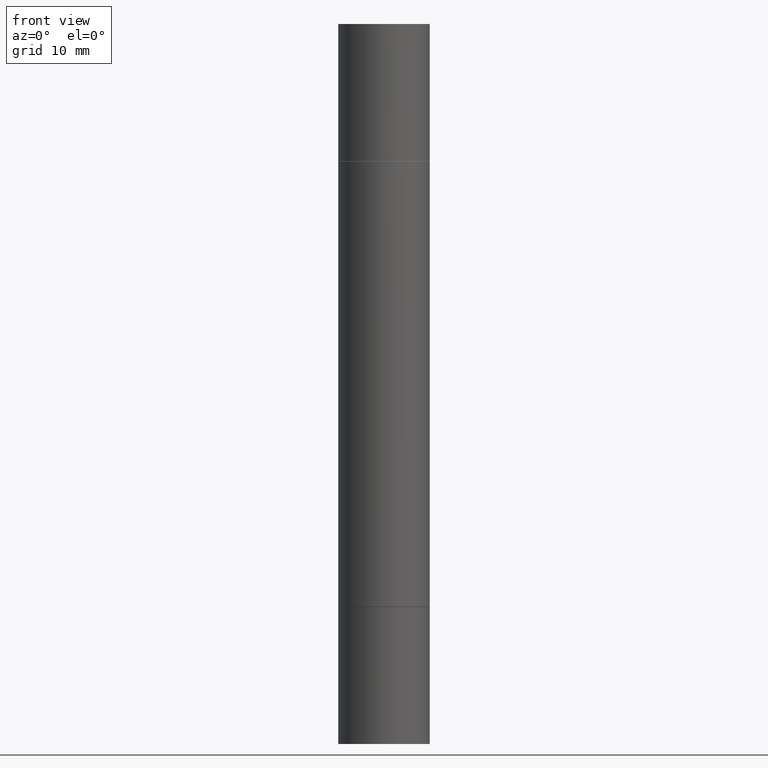
[diagram: clean part render]
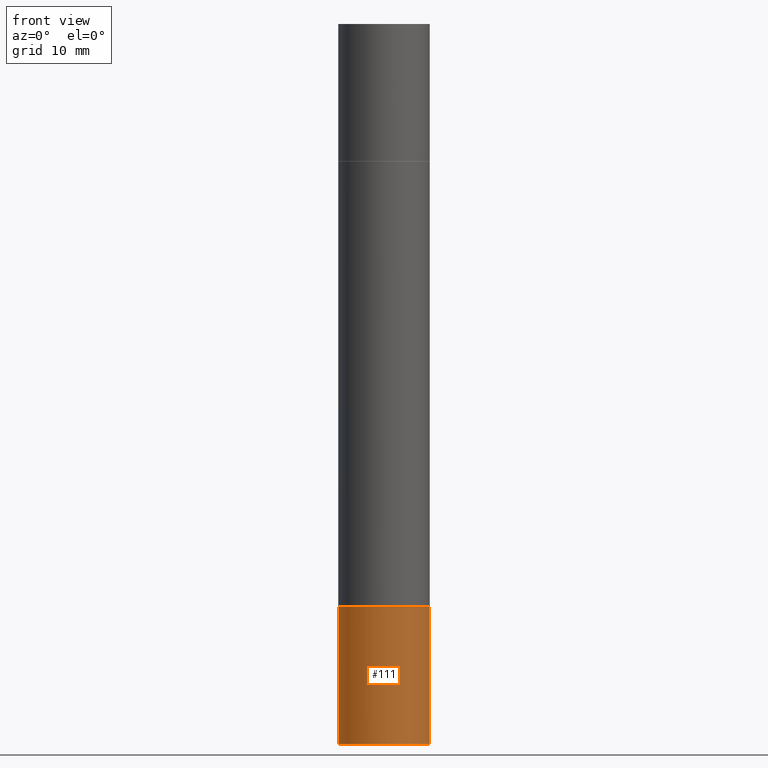
[diagram: same view with one face highlighted and labeled with its STEP entity id]
A machine part, front view. The second image highlights one B-rep face of the part: STEP entity #111.
In plain terms, the highlighted cylindrical surface (partial cylindrical patch) has radius 4.0005 mm, axis along (-0, 0, 1).
Its self-contained STEP definition (entity closure, byte-faithful):
#5 = CARTESIAN_POINT ( 'NONE',  ( -0.1575000000000000011, -6.716128463675745525E-15, -2.007900000000000240 ) ) ;
#64 = EDGE_CURVE ( 'NONE', #426, #138, #132, .T. ) ;
#104 = ORIENTED_EDGE ( 'NONE', *, *, #64, .F. ) ;
#111 = ADVANCED_FACE ( 'NONE', ( #459 ), #200, .T. ) ;
#114 = AXIS2_PLACEMENT_3D ( 'NONE', #243, #451, #405 ) ;
#121 = ORIENTED_EDGE ( 'NONE', *, *, #498, .T. ) ;
#132 = LINE ( 'NONE', #341, #649 ) ;
#138 = VERTEX_POINT ( 'NONE', #5 ) ;
#144 = VERTEX_POINT ( 'NONE', #294 ) ;
#159 = LINE ( 'NONE', #167, #375 ) ;
#166 = DIRECTION ( 'NONE',  ( -2.445468806185136597E-29, 3.491481338843145583E-15, 1.000000000000000000 ) ) ;
#167 = CARTESIAN_POINT ( 'NONE',  ( 0.1575000000000000011, -1.099816621735586889E-15, 7.679978421878598033E-30 ) ) ;
#172 = CARTESIAN_POINT ( 'NONE',  ( -0.1575000000000000011, -6.716128463675745525E-15, -2.480300000000000171 ) ) ;
#183 = DIRECTION ( 'NONE',  ( 1.000000000000000000, -6.982962677686268288E-15, 0.000000000000000000 ) ) ;
#200 = CYLINDRICAL_SURFACE ( 'NONE', #114, 0.1575000000000000011 ) ;
#221 = ORIENTED_EDGE ( 'NONE', *, *, #318, .F. ) ;
#226 = AXIS2_PLACEMENT_3D ( 'NONE', #235, #443, #183 ) ;
#235 = CARTESIAN_POINT ( 'NONE',  ( 4.910256815939136430E-29, -7.010545380263152499E-15, -2.007900000000000240 ) ) ;
#243 = CARTESIAN_POINT ( 'NONE',  ( 0.000000000000000000, 0.000000000000000000, 0.000000000000000000 ) ) ;
#282 = DIRECTION ( 'NONE',  ( 1.000000000000000000, -6.982962677686261977E-15, 0.000000000000000000 ) ) ;
#294 = CARTESIAN_POINT ( 'NONE',  ( 0.1575000000000000011, -8.110362001998739191E-15, -2.007900000000000240 ) ) ;
#318 = EDGE_CURVE ( 'NONE', #138, #144, #523, .T. ) ;
#341 = CARTESIAN_POINT ( 'NONE',  ( -0.1575000000000000011, 1.119104808822157801E-15, -7.747322767151475583E-30 ) ) ;
#375 = VECTOR ( 'NONE', #591, 39.37007874015748143 ) ;
#387 = VERTEX_POINT ( 'NONE', #393 ) ;
#393 = CARTESIAN_POINT ( 'NONE',  ( 0.1575000000000000011, -9.759737786468242027E-15, -2.480300000000000171 ) ) ;
#405 = DIRECTION ( 'NONE',  ( 1.000000000000000000, -6.982962677686265922E-15, 4.876176775795935232E-29 ) ) ;
#426 = VERTEX_POINT ( 'NONE', #172 ) ;
#443 = DIRECTION ( 'NONE',  ( -2.445468806185136597E-29, 3.491481338843145583E-15, 1.000000000000000000 ) ) ;
#451 = DIRECTION ( 'NONE',  ( -2.445468806185136597E-29, 3.491481338843145583E-15, 1.000000000000000000 ) ) ;
#457 = CIRCLE ( 'NONE', #515, 0.1575000000000000011 ) ;
#459 = FACE_OUTER_BOUND ( 'NONE', #609, .T. ) ;
#472 = EDGE_CURVE ( 'NONE', #426, #387, #457, .T. ) ;
#498 = EDGE_CURVE ( 'NONE', #387, #144, #159, .T. ) ;
#515 = AXIS2_PLACEMENT_3D ( 'NONE', #646, #166, #282 ) ;
#523 = CIRCLE ( 'NONE', #226, 0.1575000000000000011 ) ;
#558 = DIRECTION ( 'NONE',  ( -2.445468806185136877E-29, 3.491481338843145188E-15, 1.000000000000000000 ) ) ;
#591 = DIRECTION ( 'NONE',  ( -2.445468806185136877E-29, 3.491481338843145188E-15, 1.000000000000000000 ) ) ;
#609 = EDGE_LOOP ( 'NONE', ( #104, #639, #121, #221 ) ) ;
#639 = ORIENTED_EDGE ( 'NONE', *, *, #472, .T. ) ;
#646 = CARTESIAN_POINT ( 'NONE',  ( 6.065496279980994755E-29, -8.659921164732655335E-15, -2.480300000000000171 ) ) ;
#649 = VECTOR ( 'NONE', #558, 39.37007874015748143 ) ;